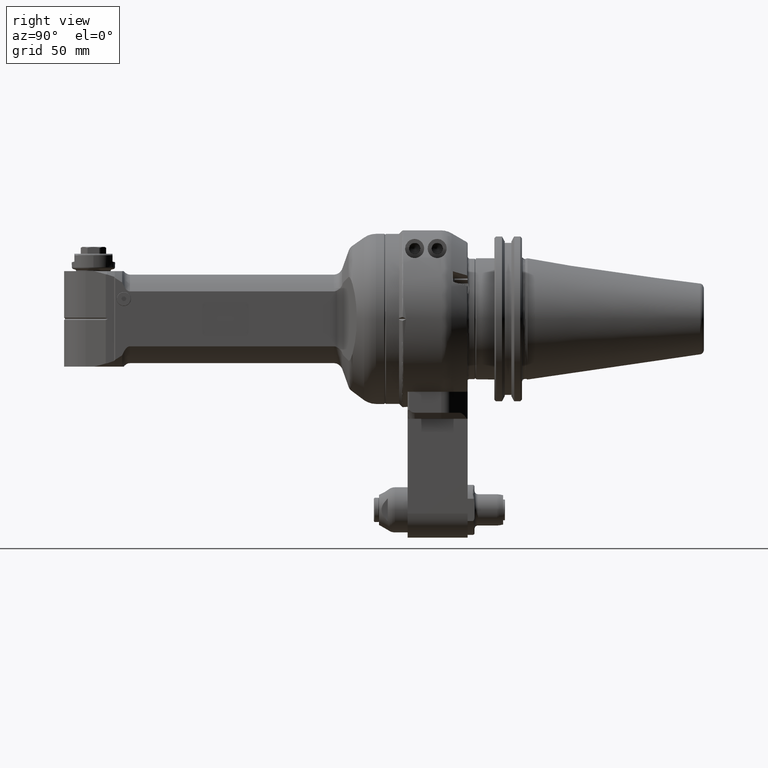
[diagram: clean part render]
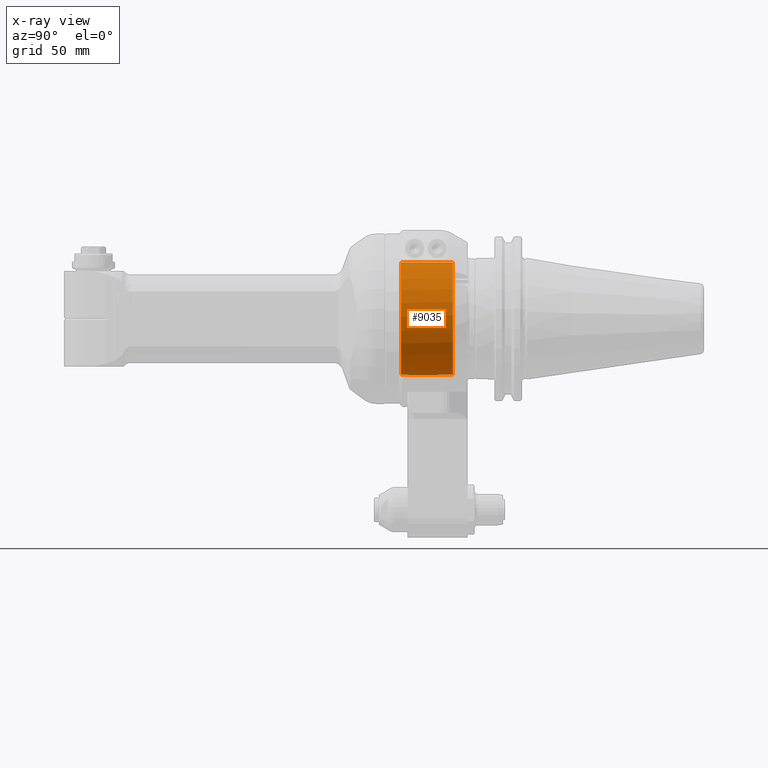
[diagram: x-ray — body ghosted, one internal face saturated and labeled with its STEP entity id]
A machine part, right view, then the same camera in x-ray: the body is ghosted and one INTERNAL B-rep face — a face not visible from any outside direction — is saturated and labeled: STEP entity #9035.
In plain terms, the highlighted cylindrical surface (partial cylindrical patch) has radius 32.5 mm, axis along (0, -1, 0).
Its self-contained STEP definition (entity closure, byte-faithful):
#952=FACE_OUTER_BOUND('',#1543,.T.);
#1543=EDGE_LOOP('',(#7034,#7035,#7036,#7037,#7038,#7039,#7040,#7041));
#2144=LINE('',#15239,#2740);
#2145=LINE('',#15242,#2741);
#2146=LINE('',#15246,#2742);
#2147=LINE('',#15250,#2743);
#2740=VECTOR('',#11745,8.5);
#2741=VECTOR('',#11748,8.5);
#2742=VECTOR('',#11751,30.);
#2743=VECTOR('',#11754,29.99999999998);
#3306=CIRCLE('',#9845,32.5);
#3332=CIRCLE('',#9894,32.5);
#3333=CIRCLE('',#9895,32.5);
#3334=CIRCLE('',#9896,32.5);
#4002=VERTEX_POINT('',#15095);
#4003=VERTEX_POINT('',#15097);
#4041=VERTEX_POINT('',#15237);
#4042=VERTEX_POINT('',#15241);
#4043=VERTEX_POINT('',#15243);
#4044=VERTEX_POINT('',#15245);
#4045=VERTEX_POINT('',#15247);
#4046=VERTEX_POINT('',#15249);
#5061=EDGE_CURVE('',#4003,#4002,#3306,.T.);
#5124=EDGE_CURVE('',#4002,#4041,#2144,.T.);
#5125=EDGE_CURVE('',#4003,#4042,#2145,.T.);
#5126=EDGE_CURVE('',#4043,#4041,#3332,.T.);
#5127=EDGE_CURVE('',#4043,#4044,#2146,.T.);
#5128=EDGE_CURVE('',#4045,#4044,#3333,.T.);
#5129=EDGE_CURVE('',#4045,#4046,#2147,.T.);
#5130=EDGE_CURVE('',#4042,#4046,#3334,.T.);
#7034=ORIENTED_EDGE('',*,*,#5125,.F.);
#7035=ORIENTED_EDGE('',*,*,#5061,.T.);
#7036=ORIENTED_EDGE('',*,*,#5124,.T.);
#7037=ORIENTED_EDGE('',*,*,#5126,.F.);
#7038=ORIENTED_EDGE('',*,*,#5127,.T.);
#7039=ORIENTED_EDGE('',*,*,#5128,.F.);
#7040=ORIENTED_EDGE('',*,*,#5129,.T.);
#7041=ORIENTED_EDGE('',*,*,#5130,.F.);
#8715=CYLINDRICAL_SURFACE('',#9893,32.5);
#9035=ADVANCED_FACE('',(#952),#8715,.F.);
#9845=AXIS2_PLACEMENT_3D('',#15098,#11614,#11615);
#9893=AXIS2_PLACEMENT_3D('',#15240,#11746,#11747);
#9894=AXIS2_PLACEMENT_3D('',#15244,#11749,#11750);
#9895=AXIS2_PLACEMENT_3D('',#15248,#11752,#11753);
#9896=AXIS2_PLACEMENT_3D('',#15251,#11755,#11756);
#11614=DIRECTION('center_axis',(0.,1.,0.));
#11615=DIRECTION('ref_axis',(0.164179104477598,0.,-0.986430545782588));
#11745=DIRECTION('',(0.,1.,0.));
#11746=DIRECTION('center_axis',(0.,-1.,0.));
#11747=DIRECTION('ref_axis',(1.38678298153134E-13,0.,-1.));
#11748=DIRECTION('',(0.,1.,0.));
#11749=DIRECTION('center_axis',(0.,-1.,0.));
#11750=DIRECTION('ref_axis',(-0.0461538461538519,0.,0.998934343430642));
#11751=DIRECTION('',(0.,-1.,0.));
#11752=DIRECTION('center_axis',(0.,1.,0.));
#11753=DIRECTION('ref_axis',(0.,0.,-1.));
#11754=DIRECTION('',(3.148370453234E-13,1.,-1.421085471521E-14));
#11755=DIRECTION('center_axis',(0.,-1.,0.));
#11756=DIRECTION('ref_axis',(0.164179104477598,0.,-0.986430545782588));
#15095=CARTESIAN_POINT('',(-5.335820895522,22.5,-32.05899273793));
#15097=CARTESIAN_POINT('',(5.335820895522,22.5,-32.05899273793));
#15098=CARTESIAN_POINT('Origin',(0.,22.5,0.));
#15237=CARTESIAN_POINT('',(-5.335820895522,31.,-32.05899273793));
#15239=CARTESIAN_POINT('',(-5.335820895522,22.5,-32.05899273793));
#15240=CARTESIAN_POINT('Origin',(0.,16.5,0.));
#15241=CARTESIAN_POINT('',(5.335820895522,31.,-32.05899273793));
#15242=CARTESIAN_POINT('',(5.335820895522,22.5,-32.05899273793));
#15243=CARTESIAN_POINT('',(-1.5,31.,32.4653661615));
#15244=CARTESIAN_POINT('Origin',(0.,31.,0.));
#15245=CARTESIAN_POINT('',(-1.5,1.,32.4653661615));
#15246=CARTESIAN_POINT('',(-1.5,31.,32.4653661615));
#15247=CARTESIAN_POINT('',(1.499999999991,1.000000000023,32.4653661615));
#15248=CARTESIAN_POINT('Origin',(0.,1.,0.));
#15249=CARTESIAN_POINT('',(1.5,31.,32.4653661615));
#15250=CARTESIAN_POINT('',(1.499999999991,1.000000000023,32.4653661615));
#15251=CARTESIAN_POINT('Origin',(0.,31.,0.));